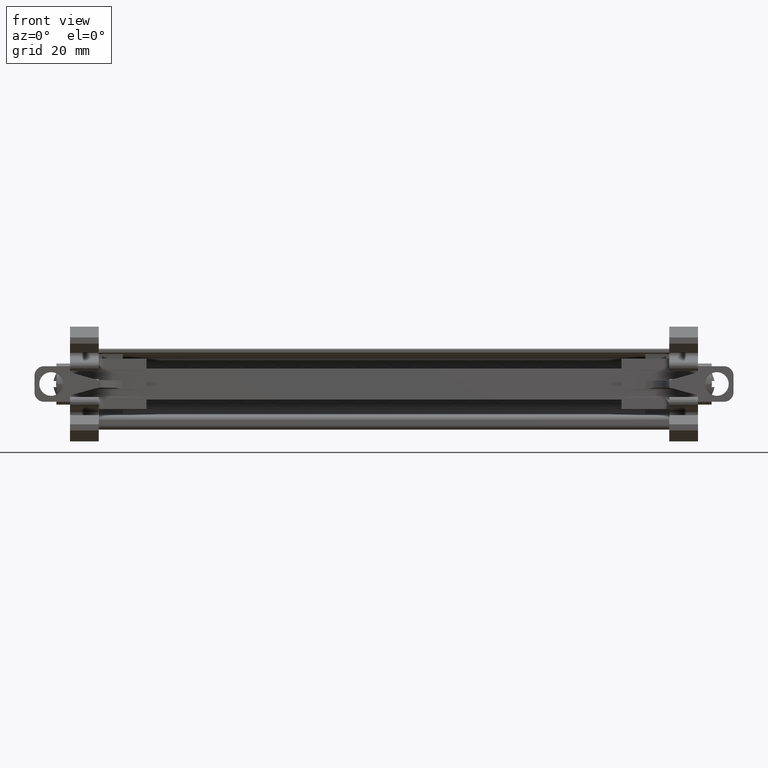
[diagram: clean part render]
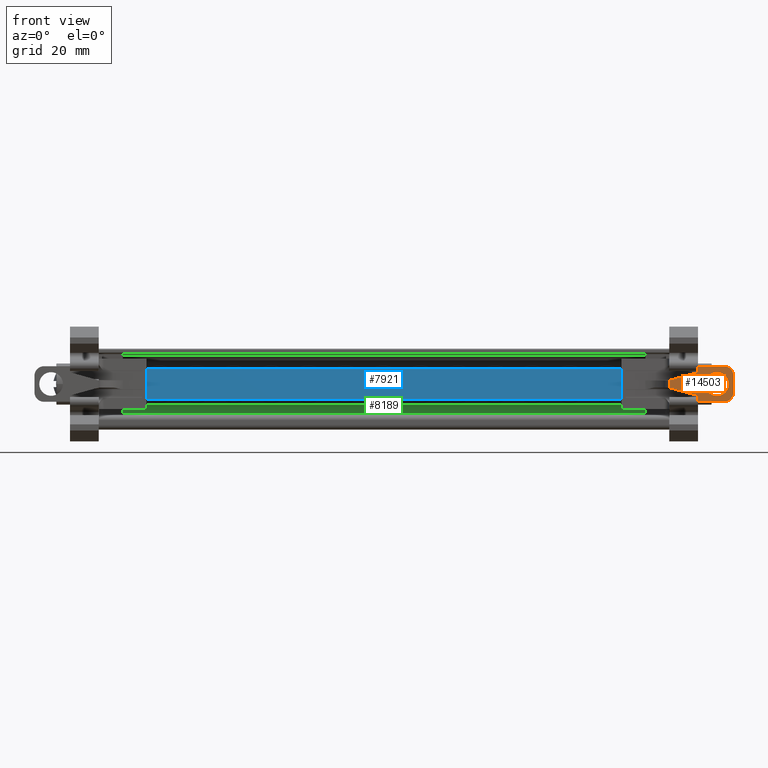
[diagram: same view with three faces highlighted in distinct colors, each labeled with its STEP entity id]
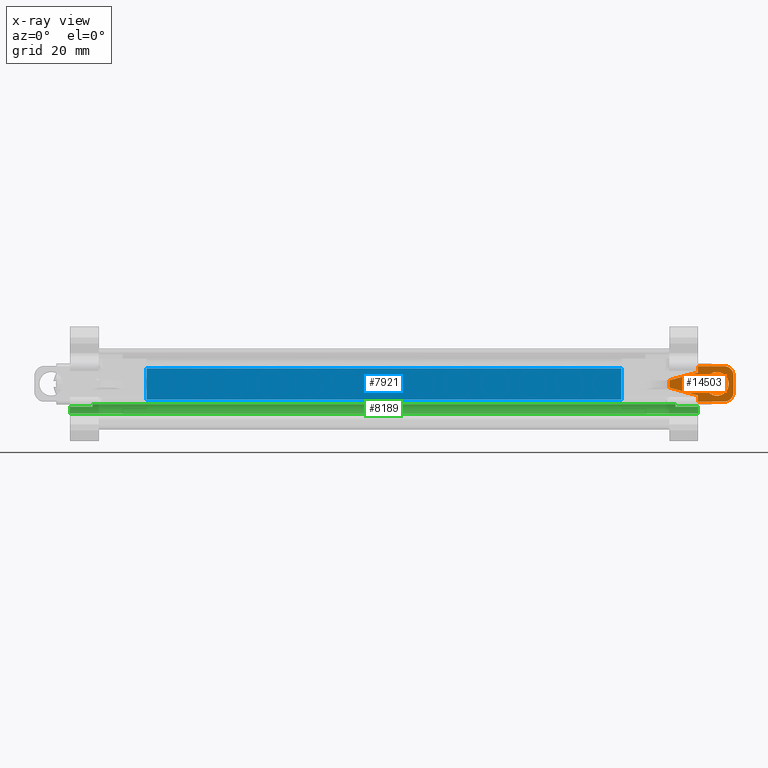
[diagram: x-ray of the same camera — body ghosted, the three highlighted faces saturated]
A machine part, front view with three faces highlighted in distinct colors.
The next image is the same camera in x-ray (body ghosted, the three faces saturated) — at least one of them is partly hidden behind the body in this view.
Their STEP definitions:

[orange] entity #14503 — the highlighted planar face has unit normal (0, -1, -0).
#280 = ORIENTED_EDGE ( 'NONE', *, *, #12612, .F. ) ;
#283 = ORIENTED_EDGE ( 'NONE', *, *, #12706, .F. ) ;
#288 = ORIENTED_EDGE ( 'NONE', *, *, #12680, .T. ) ;
#293 = ORIENTED_EDGE ( 'NONE', *, *, #12640, .T. ) ;
#297 = ORIENTED_EDGE ( 'NONE', *, *, #12629, .F. ) ;
#298 = ORIENTED_EDGE ( 'NONE', *, *, #12793, .F. ) ;
#299 = ORIENTED_EDGE ( 'NONE', *, *, #12678, .F. ) ;
#308 = ORIENTED_EDGE ( 'NONE', *, *, #12698, .T. ) ;
#314 = ORIENTED_EDGE ( 'NONE', *, *, #12609, .F. ) ;
#395 = ORIENTED_EDGE ( 'NONE', *, *, #12577, .F. ) ;
#410 = ORIENTED_EDGE ( 'NONE', *, *, #13261, .F. ) ;
#417 = ORIENTED_EDGE ( 'NONE', *, *, #12663, .F. ) ;
#12577 = EDGE_CURVE ( 'NONE', #31664, #31672, #18116, .T. ) ;
#12609 = EDGE_CURVE ( 'NONE', #22176, #22117, #16936, .T. ) ;
#12612 = EDGE_CURVE ( 'NONE', #22116, #22152, #16898, .T. ) ;
#12629 = EDGE_CURVE ( 'NONE', #22160, #22203, #16974, .T. ) ;
#12640 = EDGE_CURVE ( 'NONE', #22132, #22203, #16956, .T. ) ;
#12663 = EDGE_CURVE ( 'NONE', #22234, #22170, #16008, .T. ) ;
#12678 = EDGE_CURVE ( 'NONE', #22170, #22174, #16013, .T. ) ;
#12680 = EDGE_CURVE ( 'NONE', #22176, #22152, #17031, .T. ) ;
#12698 = EDGE_CURVE ( 'NONE', #22116, #22132, #17040, .T. ) ;
#12706 = EDGE_CURVE ( 'NONE', #22117, #22234, #16069, .T. ) ;
#12793 = EDGE_CURVE ( 'NONE', #22174, #22160, #16194, .T. ) ;
#13261 = EDGE_CURVE ( 'NONE', #31672, #31664, #17396, .T. ) ;
#14503 = ADVANCED_FACE ( 'NONE', ( #24866, #24819 ), #24830, .T. ) ;
#16008 = LINE ( 'NONE', #16009, #17008 ) ;
#16009 = CARTESIAN_POINT ( 'NONE',  ( 42.59460350631397300, -58.78966688616647900, 95.25744204099120800 ) ) ;
#16013 = LINE ( 'NONE', #16037, #16984 ) ;
#16017 = DIRECTION ( 'NONE',  ( -0.9640415414303845600, -1.061575835154252700E-014, 0.2657515877591852800 ) ) ;
#16022 = DIRECTION ( 'NONE',  ( 0.0000000000000000000, -1.008934894313868300E-043, 1.000000000000000000 ) ) ;
#16024 = DIRECTION ( 'NONE',  ( 1.000000000000000000, 1.051347561198063500E-014, 0.0000000000000000000 ) ) ;
#16029 = DIRECTION ( 'NONE',  ( 1.101172293446146000E-014, -1.000000000000000000, -3.354358198977530900E-044 ) ) ;
#16030 = CARTESIAN_POINT ( 'NONE',  ( 54.05460350631387500, -58.78966688616632300, 94.27812709572717200 ) ) ;
#16037 = CARTESIAN_POINT ( 'NONE',  ( 42.59460350631397300, -58.78966688616647900, 96.76944204099140700 ) ) ;
#16049 = DIRECTION ( 'NONE',  ( -2.470852055924995400E-015, -1.008934894313868300E-043, 1.000000000000000000 ) ) ;
#16058 = CARTESIAN_POINT ( 'NONE',  ( 48.59460350631389500, -58.78966688616644400, 92.29812709572712500 ) ) ;
#16062 = DIRECTION ( 'NONE',  ( 1.101172293446146000E-014, -1.000000000000000000, -3.354358198977530900E-044 ) ) ;
#16069 = LINE ( 'NONE', #16058, #17013 ) ;
#16071 = CARTESIAN_POINT ( 'NONE',  ( 54.05460350631386000, -58.78966688616632300, 97.76075701635605200 ) ) ;
#16081 = DIRECTION ( 'NONE',  ( 1.000000000000000000, 1.051347561198063500E-014, 0.0000000000000000000 ) ) ;
#16194 = LINE ( 'NONE', #16215, #17058 ) ;
#16215 = CARTESIAN_POINT ( 'NONE',  ( 48.59460350631386700, -58.78966688616634400, 98.42342629170043700 ) ) ;
#16216 = DIRECTION ( 'NONE',  ( 0.9640415414303834500, 1.061575835154253800E-014, 0.2657515877591897200 ) ) ;
#16850 = CARTESIAN_POINT ( 'NONE',  ( 52.55460350631387500, -58.78966688616635100, 96.01944205604164000 ) ) ;
#16852 = DIRECTION ( 'NONE',  ( 1.101172293446146000E-014, -1.000000000000000000, -3.354358198977530900E-044 ) ) ;
#16874 = DIRECTION ( 'NONE',  ( 1.000000000000000000, 1.121437398611270200E-014, 0.0000000000000000000 ) ) ;
#16895 = CARTESIAN_POINT ( 'NONE',  ( 56.03460350631384300, -58.78966688616627300, 99.74075701635605600 ) ) ;
#16897 = DIRECTION ( 'NONE',  ( 1.759965832074445500E-015, 1.938025611692280000E-029, -1.000000000000000000 ) ) ;
#16898 = LINE ( 'NONE', #16895, #18151 ) ;
#16902 = CARTESIAN_POINT ( 'NONE',  ( 48.59460350631389500, -58.78966688616634400, 92.29812709572712500 ) ) ;
#16903 = DIRECTION ( 'NONE',  ( -1.000000000000000000, -1.101172293446146000E-014, -2.403906012228000300E-015 ) ) ;
#16936 = LINE ( 'NONE', #16902, #18122 ) ;
#16940 = DIRECTION ( 'NONE',  ( -2.470852055924995400E-015, -1.008934894313868300E-043, 1.000000000000000000 ) ) ;
#16946 = DIRECTION ( 'NONE',  ( -1.000000000000000000, -1.101172293446146000E-014, -2.403906012228000300E-015 ) ) ;
#16956 = LINE ( 'NONE', #16958, #17041 ) ;
#16958 = CARTESIAN_POINT ( 'NONE',  ( 48.59460350631385200, -58.78966688616634400, 99.74075701635602800 ) ) ;
#16962 = CARTESIAN_POINT ( 'NONE',  ( 48.59460350631389500, -58.78966688616644400, 92.29812709572712500 ) ) ;
#16974 = LINE ( 'NONE', #16962, #18156 ) ;
#16984 = VECTOR ( 'NONE', #16022, 1000.000000000000000 ) ;
#16998 = AXIS2_PLACEMENT_3D ( 'NONE', #16071, #16062, #16081 ) ;
#17007 = AXIS2_PLACEMENT_3D ( 'NONE', #16030, #16029, #16024 ) ;
#17008 = VECTOR ( 'NONE', #16017, 1000.000000000000100 ) ;
#17013 = VECTOR ( 'NONE', #16049, 1000.000000000000000 ) ;
#17031 = CIRCLE ( 'NONE', #17007, 1.980000000000002600 ) ;
#17040 = CIRCLE ( 'NONE', #16998, 1.980000000000002600 ) ;
#17041 = VECTOR ( 'NONE', #16946, 1000.000000000000000 ) ;
#17058 = VECTOR ( 'NONE', #16216, 1000.000000000000100 ) ;
#17394 = AXIS2_PLACEMENT_3D ( 'NONE', #18731, #18765, #18732 ) ;
#17396 = CIRCLE ( 'NONE', #17394, 2.474999999999997900 ) ;
#18116 = CIRCLE ( 'NONE', #18132, 2.474999999999997900 ) ;
#18122 = VECTOR ( 'NONE', #16903, 1000.000000000000000 ) ;
#18132 = AXIS2_PLACEMENT_3D ( 'NONE', #16850, #16852, #16874 ) ;
#18151 = VECTOR ( 'NONE', #16897, 1000.000000000000000 ) ;
#18156 = VECTOR ( 'NONE', #16940, 1000.000000000000000 ) ;
#18731 = CARTESIAN_POINT ( 'NONE',  ( 52.55460350631387500, -58.78966688616635100, 96.01944205604164000 ) ) ;
#18732 = DIRECTION ( 'NONE',  ( 1.000000000000000000, 1.121437398611270200E-014, 0.0000000000000000000 ) ) ;
#18765 = DIRECTION ( 'NONE',  ( 1.101172293446146000E-014, -1.000000000000000000, -3.354358198977530900E-044 ) ) ;
#22116 = VERTEX_POINT ( 'NONE', #26152 ) ;
#22117 = VERTEX_POINT ( 'NONE', #26143 ) ;
#22132 = VERTEX_POINT ( 'NONE', #26160 ) ;
#22152 = VERTEX_POINT ( 'NONE', #26174 ) ;
#22160 = VERTEX_POINT ( 'NONE', #26151 ) ;
#22170 = VERTEX_POINT ( 'NONE', #26564 ) ;
#22174 = VERTEX_POINT ( 'NONE', #24753 ) ;
#22176 = VERTEX_POINT ( 'NONE', #25334 ) ;
#22203 = VERTEX_POINT ( 'NONE', #27307 ) ;
#22234 = VERTEX_POINT ( 'NONE', #27338 ) ;
#23862 = AXIS2_PLACEMENT_3D ( 'NONE', #24858, #24842, #24860 ) ;
#24753 = CARTESIAN_POINT ( 'NONE',  ( 42.59460350631387400, -58.78966688616647900, 96.76944204099130800 ) ) ;
#24819 = FACE_BOUND ( 'NONE', #28680, .T. ) ;
#24830 = PLANE ( 'NONE',  #23862 ) ;
#24842 = DIRECTION ( 'NONE',  ( 1.101172293446146000E-014, -1.000000000000000000, -3.354358198977530900E-044 ) ) ;
#24858 = CARTESIAN_POINT ( 'NONE',  ( 48.59460350631401600, -58.78966688616634400, 68.30975947004823500 ) ) ;
#24860 = DIRECTION ( 'NONE',  ( 1.000000000000000000, 1.101172293446146000E-014, 0.0000000000000000000 ) ) ;
#24866 = FACE_OUTER_BOUND ( 'NONE', #28638, .T. ) ;
#25334 = CARTESIAN_POINT ( 'NONE',  ( 54.05460350631388900, -58.78966688616632300, 92.29812709572715300 ) ) ;
#26143 = CARTESIAN_POINT ( 'NONE',  ( 48.59460350631389500, -58.78966688616644400, 92.29812709572712500 ) ) ;
#26151 = CARTESIAN_POINT ( 'NONE',  ( 48.59460350631386700, -58.78966688616634400, 98.42342629170043700 ) ) ;
#26152 = CARTESIAN_POINT ( 'NONE',  ( 56.03460350631385700, -58.78966688616627300, 97.76075701635605200 ) ) ;
#26160 = CARTESIAN_POINT ( 'NONE',  ( 54.05460350631384600, -58.78966688616632300, 99.74075701635605600 ) ) ;
#26174 = CARTESIAN_POINT ( 'NONE',  ( 56.03460350631387100, -58.78966688616627300, 94.27812709572717200 ) ) ;
#26564 = CARTESIAN_POINT ( 'NONE',  ( 42.59460350631387400, -58.78966688616637300, 95.25744204099120800 ) ) ;
#27307 = CARTESIAN_POINT ( 'NONE',  ( 48.59460350631385200, -58.78966688616644400, 99.74075701635614200 ) ) ;
#27338 = CARTESIAN_POINT ( 'NONE',  ( 48.59460350631389500, -58.78966688616644400, 93.60345779028213500 ) ) ;
#27588 = CARTESIAN_POINT ( 'NONE',  ( 55.02960350631386900, -58.78966688616632300, 96.01944205604164000 ) ) ;
#27599 = CARTESIAN_POINT ( 'NONE',  ( 50.07960350631387300, -58.78966688616638000, 96.01944205604164000 ) ) ;
#28638 = EDGE_LOOP ( 'NONE', ( #283, #314, #288, #280, #308, #293, #297, #298, #299, #417 ) ) ;
#28680 = EDGE_LOOP ( 'NONE', ( #410, #395 ) ) ;
#31664 = VERTEX_POINT ( 'NONE', #27588 ) ;
#31672 = VERTEX_POINT ( 'NONE', #27599 ) ;

[blue] entity #7921 — the highlighted planar face has unit normal (0, 1, 0).
#1740 = VERTEX_POINT ( 'NONE', #30125 ) ;
#1744 = VERTEX_POINT ( 'NONE', #30143 ) ;
#1810 = VERTEX_POINT ( 'NONE', #30250 ) ;
#1869 = VERTEX_POINT ( 'NONE', #30371 ) ;
#3958 = DIRECTION ( 'NONE',  ( 0.0000000000000000000, -0.0000000000000000000, 1.000000000000000000 ) ) ;
#3983 = CARTESIAN_POINT ( 'NONE',  ( -78.43539649368644000, -45.46391012921720400, 99.25723811290791300 ) ) ;
#3992 = FACE_OUTER_BOUND ( 'NONE', #28846, .T. ) ;
#3999 = DIRECTION ( 'NONE',  ( 0.0000000000000000000, 1.000000000000000000, 0.0000000000000000000 ) ) ;
#5251 = PLANE ( 'NONE',  #11044 ) ;
#7921 = ADVANCED_FACE ( 'NONE', ( #3992 ), #5251, .F. ) ;
#11044 = AXIS2_PLACEMENT_3D ( 'NONE', #3983, #3999, #3958 ) ;
#13990 = EDGE_CURVE ( 'NONE', #1869, #1810, #19554, .T. ) ;
#14002 = EDGE_CURVE ( 'NONE', #1869, #1744, #19599, .T. ) ;
#14055 = EDGE_CURVE ( 'NONE', #1810, #1740, #19767, .T. ) ;
#14883 = EDGE_CURVE ( 'NONE', #1744, #1740, #26593, .T. ) ;
#17626 = VECTOR ( 'NONE', #19608, 1000.000000000000000 ) ;
#17635 = VECTOR ( 'NONE', #19569, 1000.000000000000000 ) ;
#17716 = VECTOR ( 'NONE', #19761, 1000.000000000000000 ) ;
#19554 = LINE ( 'NONE', #19559, #17635 ) ;
#19559 = CARTESIAN_POINT ( 'NONE',  ( -66.60539649368669800, -45.46391012921720400, 99.35113534996820300 ) ) ;
#19569 = DIRECTION ( 'NONE',  ( -2.589419078425440300E-015, 0.0000000000000000000, 1.000000000000000000 ) ) ;
#19574 = CARTESIAN_POINT ( 'NONE',  ( -78.43539649368644000, -45.46391012921720400, 92.75723811290791300 ) ) ;
#19599 = LINE ( 'NONE', #19574, #17626 ) ;
#19608 = DIRECTION ( 'NONE',  ( 1.000000000000000000, 0.0000000000000000000, 0.0000000000000000000 ) ) ;
#19754 = CARTESIAN_POINT ( 'NONE',  ( -78.43539649368644000, -45.46391012921720400, 99.25723811290791300 ) ) ;
#19761 = DIRECTION ( 'NONE',  ( 1.000000000000000000, 0.0000000000000000000, 0.0000000000000000000 ) ) ;
#19767 = LINE ( 'NONE', #19754, #17716 ) ;
#24276 = VECTOR ( 'NONE', #26604, 1000.000000000000000 ) ;
#26570 = CARTESIAN_POINT ( 'NONE',  ( 32.59460350631415100, -45.46391012921720400, 99.25723811290818300 ) ) ;
#26593 = LINE ( 'NONE', #26570, #24276 ) ;
#26604 = DIRECTION ( 'NONE',  ( -2.352285033424550400E-015, 0.0000000000000000000, 1.000000000000000000 ) ) ;
#28846 = EDGE_LOOP ( 'NONE', ( #36083, #36107, #36061, #36118 ) ) ;
#30125 = CARTESIAN_POINT ( 'NONE',  ( 32.59460350631415100, -45.46391012921720400, 99.25723811290791300 ) ) ;
#30143 = CARTESIAN_POINT ( 'NONE',  ( 32.59460350631417900, -45.46391012921720400, 92.75723811290791300 ) ) ;
#30250 = CARTESIAN_POINT ( 'NONE',  ( -66.60539649368669800, -45.46391012921720400, 99.25723811290791300 ) ) ;
#30371 = CARTESIAN_POINT ( 'NONE',  ( -66.60539649368668300, -45.46391012921720400, 92.75723811290791300 ) ) ;
#36061 = ORIENTED_EDGE ( 'NONE', *, *, #14055, .F. ) ;
#36083 = ORIENTED_EDGE ( 'NONE', *, *, #14002, .T. ) ;
#36107 = ORIENTED_EDGE ( 'NONE', *, *, #14883, .T. ) ;
#36118 = ORIENTED_EDGE ( 'NONE', *, *, #13990, .F. ) ;

[green] entity #8189 — the highlighted cylindrical surface (edge-blend (fillet) strip) has radius 1.9992 mm, axis along (1, 0, 0).
#3194 = EDGE_CURVE ( 'NONE', #32888, #32892, #30868, .T. ) ;
#3207 = EDGE_CURVE ( 'NONE', #32857, #32902, #30927, .T. ) ;
#3213 = EDGE_CURVE ( 'NONE', #32940, #32913, #30906, .T. ) ;
#3252 = EDGE_CURVE ( 'NONE', #32856, #32887, #30958, .T. ) ;
#3260 = EDGE_CURVE ( 'NONE', #32864, #32919, #30964, .T. ) ;
#3265 = EDGE_CURVE ( 'NONE', #32881, #32924, #30990, .T. ) ;
#5543 = AXIS2_PLACEMENT_3D ( 'NONE', #8677, #8668, #8648 ) ;
#6152 = AXIS2_PLACEMENT_3D ( 'NONE', #10133, #10144, #10136 ) ;
#6191 = CIRCLE ( 'NONE', #6251, 1.999242424225201800 ) ;
#6200 = VECTOR ( 'NONE', #10007, 1000.000000000000000 ) ;
#6219 = CIRCLE ( 'NONE', #6152, 1.999242424225198500 ) ;
#6251 = AXIS2_PLACEMENT_3D ( 'NONE', #10006, #10025, #10035 ) ;
#7469 = EDGE_CURVE ( 'NONE', #33065, #33055, #11698, .T. ) ;
#7477 = EDGE_CURVE ( 'NONE', #33055, #33109, #20336, .T. ) ;
#7482 = EDGE_CURVE ( 'NONE', #33095, #33017, #20342, .T. ) ;
#7499 = EDGE_CURVE ( 'NONE', #33133, #33059, #20375, .T. ) ;
#7501 = EDGE_CURVE ( 'NONE', #32913, #32857, #20407, .T. ) ;
#7502 = EDGE_CURVE ( 'NONE', #32902, #32888, #20426, .T. ) ;
#7513 = EDGE_CURVE ( 'NONE', #32919, #32924, #20442, .T. ) ;
#7523 = EDGE_CURVE ( 'NONE', #33067, #33065, #20474, .T. ) ;
#7524 = EDGE_CURVE ( 'NONE', #33095, #33067, #11752, .T. ) ;
#7529 = EDGE_CURVE ( 'NONE', #32892, #32881, #20481, .T. ) ;
#7705 = EDGE_CURVE ( 'NONE', #33017, #33059, #10861, .T. ) ;
#8189 = ADVANCED_FACE ( 'NONE', ( #8653 ), #8676, .F. ) ;
#8442 = EDGE_CURVE ( 'NONE', #33109, #32940, #6191, .T. ) ;
#8446 = EDGE_CURVE ( 'NONE', #32887, #32864, #10003, .T. ) ;
#8463 = EDGE_CURVE ( 'NONE', #32856, #33133, #6219, .T. ) ;
#8648 = DIRECTION ( 'NONE',  ( 0.0000000000000000000, 1.735380817210397200E-014, 1.000000000000000000 ) ) ;
#8653 = FACE_OUTER_BOUND ( 'NONE', #28236, .T. ) ;
#8668 = DIRECTION ( 'NONE',  ( 1.000000000000000000, 1.123605221868000100E-014, 2.470852055923969000E-015 ) ) ;
#8676 = CYLINDRICAL_SURFACE ( 'NONE', #5543, 1.999242424225194900 ) ;
#8677 = CARTESIAN_POINT ( 'NONE',  ( -82.65664649360093100, -24.79683233985525700, 91.79530774263902500 ) ) ;
#10003 = LINE ( 'NONE', #10013, #6200 ) ;
#10006 = CARTESIAN_POINT ( 'NONE',  ( -77.88962846789928600, -24.79683233985520400, 91.79530774263903900 ) ) ;
#10007 = DIRECTION ( 'NONE',  ( -1.000000000000000000, -1.123605221868026300E-014, -1.643677741129682900E-014 ) ) ;
#10013 = CARTESIAN_POINT ( 'NONE',  ( 47.26948986892438900, -22.79758991562856400, 91.79530774264712500 ) ) ;
#10025 = DIRECTION ( 'NONE',  ( 1.000000000000000000, 1.123605221868004000E-014, 2.589419078425440300E-015 ) ) ;
#10035 = DIRECTION ( 'NONE',  ( -1.388304653768312900E-014, 1.000000000000000000, 0.0000000000000000000 ) ) ;
#10133 = CARTESIAN_POINT ( 'NONE',  ( 43.87883548052634800, -24.79683233985383200, 91.79530774263935200 ) ) ;
#10136 = DIRECTION ( 'NONE',  ( 1.041228490326236500E-014, -1.000000000000000000, 0.0000000000000000000 ) ) ;
#10144 = DIRECTION ( 'NONE',  ( -1.000000000000000000, -1.100161628464488100E-014, -2.352285033424550400E-015 ) ) ;
#10846 = AXIS2_PLACEMENT_3D ( 'NONE', #29240, #29234, #29217 ) ;
#10861 = CIRCLE ( 'NONE', #10846, 1.999242424225194900 ) ;
#11698 = CIRCLE ( 'NONE', #11699, 1.999242424225198500 ) ;
#11699 = AXIS2_PLACEMENT_3D ( 'NONE', #20314, #20315, #20247 ) ;
#11704 = VECTOR ( 'NONE', #20334, 1000.000000000000000 ) ;
#11705 = VECTOR ( 'NONE', #20326, 1000.000000000000000 ) ;
#11739 = VECTOR ( 'NONE', #20423, 1000.000000000000000 ) ;
#11748 = AXIS2_PLACEMENT_3D ( 'NONE', #20477, #20489, #20456 ) ;
#11752 = CIRCLE ( 'NONE', #11748, 1.999242424225198500 ) ;
#11762 = VECTOR ( 'NONE', #20461, 1000.000000000000000 ) ;
#11776 = VECTOR ( 'NONE', #20368, 1000.000000000000000 ) ;
#11777 = VECTOR ( 'NONE', #20410, 1000.000000000000000 ) ;
#11781 = VECTOR ( 'NONE', #20444, 1000.000000000000000 ) ;
#11782 = VECTOR ( 'NONE', #20476, 1000.000000000000000 ) ;
#20247 = DIRECTION ( 'NONE',  ( 1.388304653768315200E-014, -1.000000000000000000, 0.0000000000000000000 ) ) ;
#20314 = CARTESIAN_POINT ( 'NONE',  ( -82.60539649368647000, -24.79683233985525700, 91.79530774263902500 ) ) ;
#20315 = DIRECTION ( 'NONE',  ( -1.000000000000000000, -1.111883425166246100E-014, -2.470852055924995400E-015 ) ) ;
#20322 = CARTESIAN_POINT ( 'NONE',  ( -82.65664649360096000, -22.87758226170011600, 91.23544221563869900 ) ) ;
#20326 = DIRECTION ( 'NONE',  ( 1.000000000000000000, 1.123605221868000100E-014, 2.470852055923969000E-015 ) ) ;
#20334 = DIRECTION ( 'NONE',  ( 1.000000000000000000, 1.123605221868000100E-014, 2.470852055923969000E-015 ) ) ;
#20336 = LINE ( 'NONE', #20322, #11704 ) ;
#20342 = LINE ( 'NONE', #20347, #11705 ) ;
#20347 = CARTESIAN_POINT ( 'NONE',  ( -82.65664649360091700, -24.76194074849428600, 89.79636981271907800 ) ) ;
#20368 = DIRECTION ( 'NONE',  ( 1.000000000000000000, 1.123605221868000100E-014, 2.470852055923969000E-015 ) ) ;
#20375 = LINE ( 'NONE', #20391, #11776 ) ;
#20391 = CARTESIAN_POINT ( 'NONE',  ( -82.65664649360096000, -22.87758226170010900, 91.23544221563872700 ) ) ;
#20394 = CARTESIAN_POINT ( 'NONE',  ( -81.68164649360093700, -22.79758991563003400, 91.79530774264590300 ) ) ;
#20407 = LINE ( 'NONE', #20394, #11777 ) ;
#20410 = DIRECTION ( 'NONE',  ( 1.000000000000000000, 1.123605221868000100E-014, 2.470852055923969000E-015 ) ) ;
#20423 = DIRECTION ( 'NONE',  ( -1.000000000000000000, 4.806468407661643200E-015, -9.453814733610668100E-015 ) ) ;
#20426 = LINE ( 'NONE', #20432, #11781 ) ;
#20432 = CARTESIAN_POINT ( 'NONE',  ( -81.68164649360093700, -22.79758991563003400, 91.79530774264590300 ) ) ;
#20440 = CARTESIAN_POINT ( 'NONE',  ( 62.16841032457919200, -22.79758991563100400, 91.79530774264726700 ) ) ;
#20442 = LINE ( 'NONE', #20440, #11739 ) ;
#20444 = DIRECTION ( 'NONE',  ( 1.000000000000000000, 1.123605221868000100E-014, 2.470852055923969000E-015 ) ) ;
#20456 = DIRECTION ( 'NONE',  ( -1.388304653768315200E-014, 1.000000000000000000, 0.0000000000000000000 ) ) ;
#20461 = DIRECTION ( 'NONE',  ( 1.000000000000000000, 1.123605221868000100E-014, 2.470852055923969000E-015 ) ) ;
#20474 = LINE ( 'NONE', #20488, #11782 ) ;
#20476 = DIRECTION ( 'NONE',  ( 1.000000000000000000, 1.123605221868000100E-014, 2.470852055923969000E-015 ) ) ;
#20477 = CARTESIAN_POINT ( 'NONE',  ( -82.60658967541782300, -24.79683233985525700, 91.79530774263902500 ) ) ;
#20481 = LINE ( 'NONE', #20482, #11762 ) ;
#20482 = CARTESIAN_POINT ( 'NONE',  ( -81.68164649360093700, -22.79758991563003400, 91.79530774264590300 ) ) ;
#20488 = CARTESIAN_POINT ( 'NONE',  ( -82.65664649360093100, -22.79758991563003400, 91.79530774264590300 ) ) ;
#20489 = DIRECTION ( 'NONE',  ( 1.000000000000000000, 1.123605221868000100E-014, 2.470852055923969000E-015 ) ) ;
#21475 = ORIENTED_EDGE ( 'NONE', *, *, #7523, .F. ) ;
#21484 = ORIENTED_EDGE ( 'NONE', *, *, #7529, .F. ) ;
#21493 = ORIENTED_EDGE ( 'NONE', *, *, #8446, .T. ) ;
#21505 = ORIENTED_EDGE ( 'NONE', *, *, #7477, .F. ) ;
#21507 = ORIENTED_EDGE ( 'NONE', *, *, #7469, .F. ) ;
#21514 = ORIENTED_EDGE ( 'NONE', *, *, #3207, .F. ) ;
#21516 = ORIENTED_EDGE ( 'NONE', *, *, #7501, .F. ) ;
#21522 = ORIENTED_EDGE ( 'NONE', *, *, #7513, .T. ) ;
#21524 = ORIENTED_EDGE ( 'NONE', *, *, #3265, .F. ) ;
#21530 = ORIENTED_EDGE ( 'NONE', *, *, #7524, .F. ) ;
#21535 = ORIENTED_EDGE ( 'NONE', *, *, #7482, .T. ) ;
#21548 = ORIENTED_EDGE ( 'NONE', *, *, #3194, .F. ) ;
#21556 = ORIENTED_EDGE ( 'NONE', *, *, #8463, .F. ) ;
#21557 = ORIENTED_EDGE ( 'NONE', *, *, #7502, .F. ) ;
#21561 = ORIENTED_EDGE ( 'NONE', *, *, #3260, .T. ) ;
#21571 = ORIENTED_EDGE ( 'NONE', *, *, #7705, .T. ) ;
#21573 = ORIENTED_EDGE ( 'NONE', *, *, #7499, .F. ) ;
#21577 = ORIENTED_EDGE ( 'NONE', *, *, #8442, .F. ) ;
#21585 = ORIENTED_EDGE ( 'NONE', *, *, #3252, .T. ) ;
#21616 = ORIENTED_EDGE ( 'NONE', *, *, #3213, .F. ) ;
#26881 = CARTESIAN_POINT ( 'NONE',  ( 43.87883548052636900, -22.79758991562859900, 91.79530774264706800 ) ) ;
#26888 = CARTESIAN_POINT ( 'NONE',  ( -26.69334765464742200, -22.79758991562945200, 91.79530774264644300 ) ) ;
#26890 = CARTESIAN_POINT ( 'NONE',  ( 24.56850457975216900, -22.79758991562881200, 91.79530774264674200 ) ) ;
#26898 = CARTESIAN_POINT ( 'NONE',  ( -58.43907150310192800, -22.79758991562978200, 91.79530774264613100 ) ) ;
#26907 = CARTESIAN_POINT ( 'NONE',  ( -43.25307251592825300, -22.79758991562961900, 91.79530774264627300 ) ) ;
#26909 = CARTESIAN_POINT ( 'NONE',  ( -30.53436796741381400, -22.79758991562948000, 91.79530774264638600 ) ) ;
#26911 = CARTESIAN_POINT ( 'NONE',  ( 27.26369164764297200, -22.79758991562878400, 91.79530774264677000 ) ) ;
#26918 = CARTESIAN_POINT ( 'NONE',  ( -6.838155930600462900, -22.79758991562919900, 91.79530774264610200 ) ) ;
#26937 = CARTESIAN_POINT ( 'NONE',  ( -4.054488533868867400, -22.79758991562914600, 91.79530774264630100 ) ) ;
#26940 = CARTESIAN_POINT ( 'NONE',  ( -77.88962846789918600, -22.79758991562998100, 91.79530774264591700 ) ) ;
#26941 = CARTESIAN_POINT ( 'NONE',  ( -61.50587773826686800, -22.79758991562983900, 91.79530774264610200 ) ) ;
#26942 = CARTESIAN_POINT ( 'NONE',  ( -45.62229894054995300, -22.79758991562967200, 91.79530774264624400 ) ) ;
#27029 = CARTESIAN_POINT ( 'NONE',  ( 48.59443305074157100, -24.76194074849281200, 89.79636981271939100 ) ) ;
#27043 = CARTESIAN_POINT ( 'NONE',  ( -82.60539649368644200, -22.79758991563003400, 91.79530774264590300 ) ) ;
#27069 = CARTESIAN_POINT ( 'NONE',  ( 48.59443305074152900, -22.87758226169863800, 91.23544221563904000 ) ) ;
#27093 = CARTESIAN_POINT ( 'NONE',  ( -82.60658967541785100, -22.79758991563003400, 91.79530774264590300 ) ) ;
#27095 = CARTESIAN_POINT ( 'NONE',  ( -82.60539649368649900, -22.87758226170011600, 91.23544221563869900 ) ) ;
#27110 = CARTESIAN_POINT ( 'NONE',  ( -82.60658967541782300, -24.76194074849428600, 89.79636981271907800 ) ) ;
#27127 = CARTESIAN_POINT ( 'NONE',  ( -77.88962846789920000, -22.87758226170006600, 91.23544221563871300 ) ) ;
#27144 = CARTESIAN_POINT ( 'NONE',  ( 43.87883548052632700, -22.87758226169870200, 91.23544221563901100 ) ) ;
#28236 = EDGE_LOOP ( 'NONE', ( #21577, #21505, #21507, #21475, #21530, #21535, #21571, #21573, #21556, #21585, #21493, #21561, #21522, #21524, #21484, #21548, #21557, #21514, #21516, #21616 ) ) ;
#29217 = DIRECTION ( 'NONE',  ( -1.735380817210397200E-014, 1.735380817210397200E-015, 1.000000000000000000 ) ) ;
#29234 = DIRECTION ( 'NONE',  ( 1.000000000000000000, 1.123605221868026300E-014, 1.643677741129682900E-014 ) ) ;
#29240 = CARTESIAN_POINT ( 'NONE',  ( 48.59443305074154300, -24.79683233985378300, 91.79530774263935200 ) ) ;
#30868 = LINE ( 'NONE', #30869, #32783 ) ;
#30869 = CARTESIAN_POINT ( 'NONE',  ( -81.68164649360093700, -22.79758991563003400, 91.79530774264590300 ) ) ;
#30880 = DIRECTION ( 'NONE',  ( 1.000000000000000000, 1.123605221868000100E-014, 2.470852055923969000E-015 ) ) ;
#30898 = CARTESIAN_POINT ( 'NONE',  ( -81.68164649360093700, -22.79758991563003400, 91.79530774264590300 ) ) ;
#30906 = LINE ( 'NONE', #30920, #33759 ) ;
#30920 = CARTESIAN_POINT ( 'NONE',  ( -82.65664649360093100, -22.79758991563003400, 91.79530774264590300 ) ) ;
#30921 = DIRECTION ( 'NONE',  ( 1.000000000000000000, 1.123605221868000100E-014, 2.470852055923969000E-015 ) ) ;
#30923 = DIRECTION ( 'NONE',  ( 1.000000000000000000, 1.123605221868000100E-014, 2.470852055923969000E-015 ) ) ;
#30927 = LINE ( 'NONE', #30898, #33754 ) ;
#30933 = CARTESIAN_POINT ( 'NONE',  ( 47.26948986892438900, -22.79758991562856400, 91.79530774264712500 ) ) ;
#30939 = DIRECTION ( 'NONE',  ( -1.000000000000000000, -1.123605221868026300E-014, -1.643677741129682900E-014 ) ) ;
#30958 = LINE ( 'NONE', #30933, #33792 ) ;
#30961 = DIRECTION ( 'NONE',  ( -1.000000000000000000, -1.123605221868026300E-014, -1.643677741129682900E-014 ) ) ;
#30964 = LINE ( 'NONE', #30970, #33798 ) ;
#30970 = CARTESIAN_POINT ( 'NONE',  ( 47.26948986892438900, -22.79758991562856400, 91.79530774264712500 ) ) ;
#30990 = LINE ( 'NONE', #31006, #33820 ) ;
#31000 = DIRECTION ( 'NONE',  ( 1.000000000000000000, 1.123605221868000100E-014, 2.470852055923969000E-015 ) ) ;
#31006 = CARTESIAN_POINT ( 'NONE',  ( -81.68164649360093700, -22.79758991563003400, 91.79530774264590300 ) ) ;
#32783 = VECTOR ( 'NONE', #30880, 1000.000000000000000 ) ;
#32856 = VERTEX_POINT ( 'NONE', #26881 ) ;
#32857 = VERTEX_POINT ( 'NONE', #26898 ) ;
#32864 = VERTEX_POINT ( 'NONE', #26890 ) ;
#32881 = VERTEX_POINT ( 'NONE', #26888 ) ;
#32887 = VERTEX_POINT ( 'NONE', #26911 ) ;
#32888 = VERTEX_POINT ( 'NONE', #26907 ) ;
#32892 = VERTEX_POINT ( 'NONE', #26909 ) ;
#32902 = VERTEX_POINT ( 'NONE', #26942 ) ;
#32913 = VERTEX_POINT ( 'NONE', #26941 ) ;
#32919 = VERTEX_POINT ( 'NONE', #26937 ) ;
#32924 = VERTEX_POINT ( 'NONE', #26918 ) ;
#32940 = VERTEX_POINT ( 'NONE', #26940 ) ;
#33017 = VERTEX_POINT ( 'NONE', #27029 ) ;
#33055 = VERTEX_POINT ( 'NONE', #27095 ) ;
#33059 = VERTEX_POINT ( 'NONE', #27069 ) ;
#33065 = VERTEX_POINT ( 'NONE', #27043 ) ;
#33067 = VERTEX_POINT ( 'NONE', #27093 ) ;
#33095 = VERTEX_POINT ( 'NONE', #27110 ) ;
#33109 = VERTEX_POINT ( 'NONE', #27127 ) ;
#33133 = VERTEX_POINT ( 'NONE', #27144 ) ;
#33754 = VECTOR ( 'NONE', #30921, 1000.000000000000000 ) ;
#33759 = VECTOR ( 'NONE', #30923, 1000.000000000000000 ) ;
#33792 = VECTOR ( 'NONE', #30961, 1000.000000000000000 ) ;
#33798 = VECTOR ( 'NONE', #30939, 1000.000000000000000 ) ;
#33820 = VECTOR ( 'NONE', #31000, 1000.000000000000000 ) ;